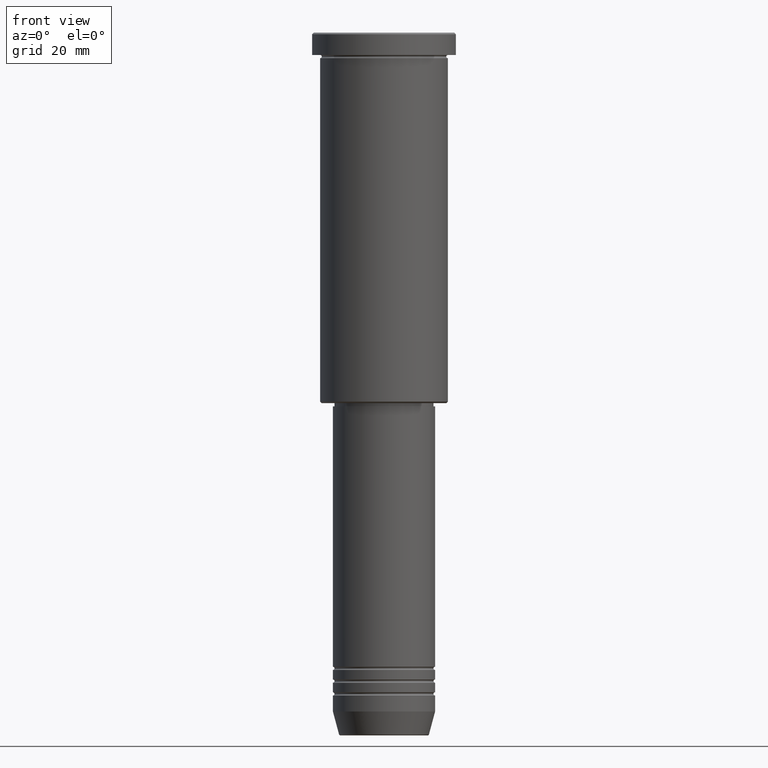
[diagram: clean part render]
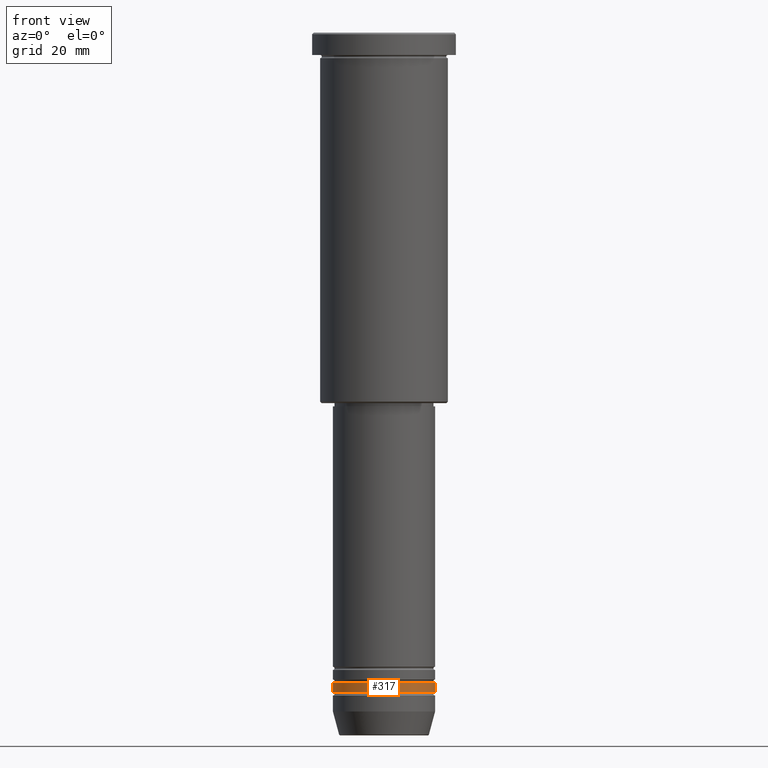
[diagram: same view with one face highlighted and labeled with its STEP entity id]
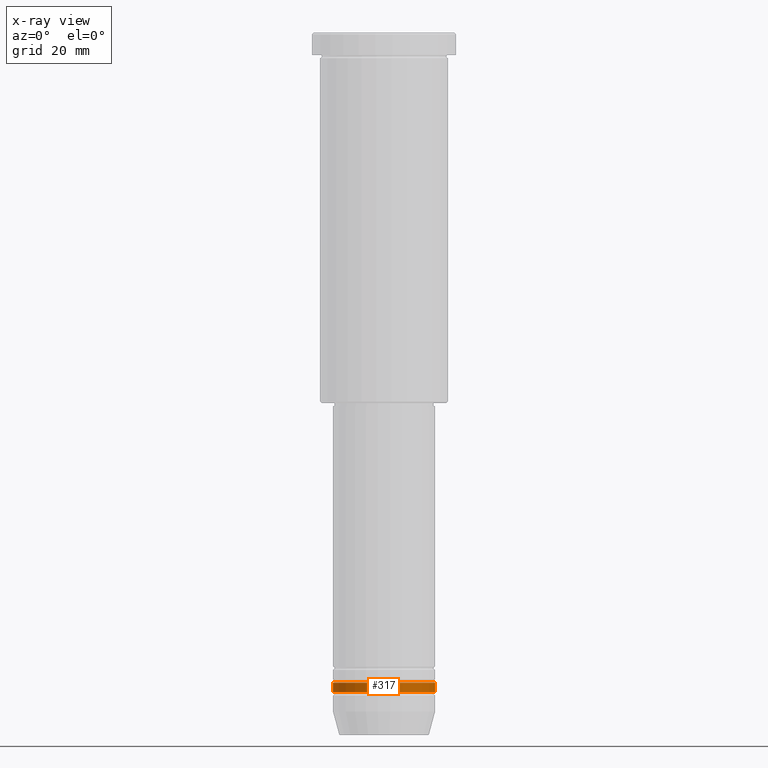
[diagram: x-ray of the same camera — body ghosted, the highlighted face saturated]
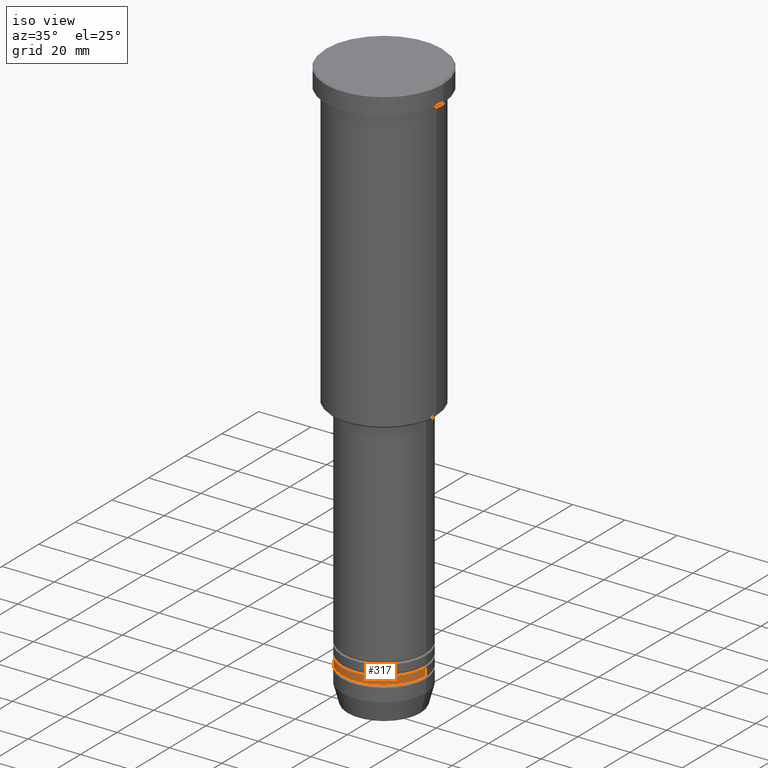
[diagram: same view with one face highlighted and labeled with its STEP entity id]
A machine part, front view. The second image highlights one B-rep face of the part: STEP entity #317.
The next image is the same camera in x-ray: the body ghosted, the highlighted face saturated — about 0% of this face is hidden behind the body in this view.
A second angle (iso view) of the same face is appended — the face is thin or edge-on in the first view.
In plain terms, the highlighted cylindrical surface (partial cylindrical patch) has radius 16 mm, axis along (-0, -0, 1).
Its self-contained STEP definition (entity closure, byte-faithful):
#41 = AXIS2_PLACEMENT_3D ( 'NONE', #624, #181, #519 ) ;
#52 = EDGE_CURVE ( 'NONE', #538, #514, #274, .T. ) ;
#72 = DIRECTION ( 'NONE',  ( -0.000000000000000000, -0.000000000000000000, 1.000000000000000000 ) ) ;
#75 = ORIENTED_EDGE ( 'NONE', *, *, #354, .T. ) ;
#116 = CARTESIAN_POINT ( 'NONE',  ( 0.000000000000000000, 0.000000000000000000, -206.4999999999999716 ) ) ;
#121 = CARTESIAN_POINT ( 'NONE',  ( 16.00000000000000000, 0.000000000000000000, -203.5000000000000000 ) ) ;
#128 = EDGE_CURVE ( 'NONE', #414, #1070, #234, .T. ) ;
#169 = CARTESIAN_POINT ( 'NONE',  ( -16.00000000000000000, 1.959434878635765131E-15, -206.4999999999999716 ) ) ;
#181 = DIRECTION ( 'NONE',  ( -0.000000000000000000, -0.000000000000000000, 1.000000000000000000 ) ) ;
#234 = CIRCLE ( 'NONE', #915, 16.00000000000000000 ) ;
#271 = ORIENTED_EDGE ( 'NONE', *, *, #128, .T. ) ;
#274 = CIRCLE ( 'NONE', #932, 16.00000000000000000 ) ;
#317 = ADVANCED_FACE ( 'NONE', ( #973 ), #801, .T. ) ;
#354 = EDGE_CURVE ( 'NONE', #1070, #514, #435, .T. ) ;
#383 = DIRECTION ( 'NONE',  ( 1.000000000000000000, 0.000000000000000000, 0.000000000000000000 ) ) ;
#414 = VERTEX_POINT ( 'NONE', #169 ) ;
#435 = LINE ( 'NONE', #628, #864 ) ;
#464 = ORIENTED_EDGE ( 'NONE', *, *, #651, .F. ) ;
#499 = CARTESIAN_POINT ( 'NONE',  ( 16.00000000000000000, 0.000000000000000000, -206.4999999999999716 ) ) ;
#514 = VERTEX_POINT ( 'NONE', #121 ) ;
#519 = DIRECTION ( 'NONE',  ( 1.000000000000000000, 0.000000000000000000, 0.000000000000000000 ) ) ;
#538 = VERTEX_POINT ( 'NONE', #745 ) ;
#568 = DIRECTION ( 'NONE',  ( -0.000000000000000000, -0.000000000000000000, 1.000000000000000000 ) ) ;
#624 = CARTESIAN_POINT ( 'NONE',  ( 0.000000000000000000, 0.000000000000000000, 0.000000000000000000 ) ) ;
#628 = CARTESIAN_POINT ( 'NONE',  ( 16.00000000000000000, 0.000000000000000000, 0.000000000000000000 ) ) ;
#651 = EDGE_CURVE ( 'NONE', #414, #538, #855, .T. ) ;
#711 = ORIENTED_EDGE ( 'NONE', *, *, #52, .F. ) ;
#745 = CARTESIAN_POINT ( 'NONE',  ( -16.00000000000000000, 1.959434878635765131E-15, -203.5000000000000000 ) ) ;
#789 = CARTESIAN_POINT ( 'NONE',  ( -16.00000000000000000, 1.959434878635765131E-15, 0.000000000000000000 ) ) ;
#801 = CYLINDRICAL_SURFACE ( 'NONE', #41, 16.00000000000000000 ) ;
#855 = LINE ( 'NONE', #789, #1008 ) ;
#864 = VECTOR ( 'NONE', #72, 1000.000000000000000 ) ;
#868 = DIRECTION ( 'NONE',  ( -0.000000000000000000, -0.000000000000000000, 1.000000000000000000 ) ) ;
#915 = AXIS2_PLACEMENT_3D ( 'NONE', #116, #568, #1024 ) ;
#932 = AXIS2_PLACEMENT_3D ( 'NONE', #1096, #1118, #383 ) ;
#973 = FACE_OUTER_BOUND ( 'NONE', #1117, .T. ) ;
#1008 = VECTOR ( 'NONE', #868, 1000.000000000000000 ) ;
#1024 = DIRECTION ( 'NONE',  ( 1.000000000000000000, 0.000000000000000000, 0.000000000000000000 ) ) ;
#1070 = VERTEX_POINT ( 'NONE', #499 ) ;
#1096 = CARTESIAN_POINT ( 'NONE',  ( 0.000000000000000000, 0.000000000000000000, -203.5000000000000000 ) ) ;
#1117 = EDGE_LOOP ( 'NONE', ( #464, #271, #75, #711 ) ) ;
#1118 = DIRECTION ( 'NONE',  ( -0.000000000000000000, -0.000000000000000000, 1.000000000000000000 ) ) ;